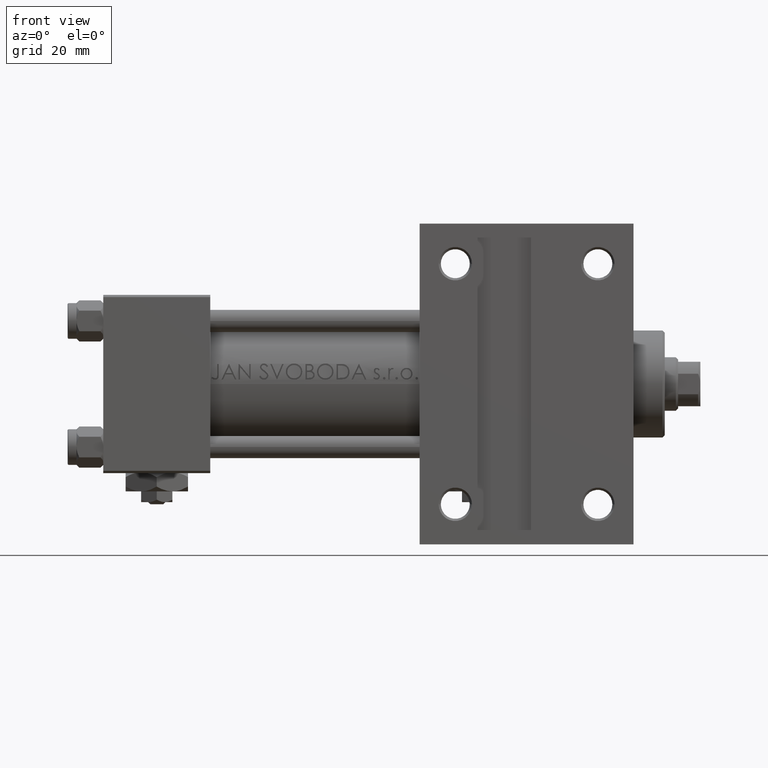
[diagram: clean part render]
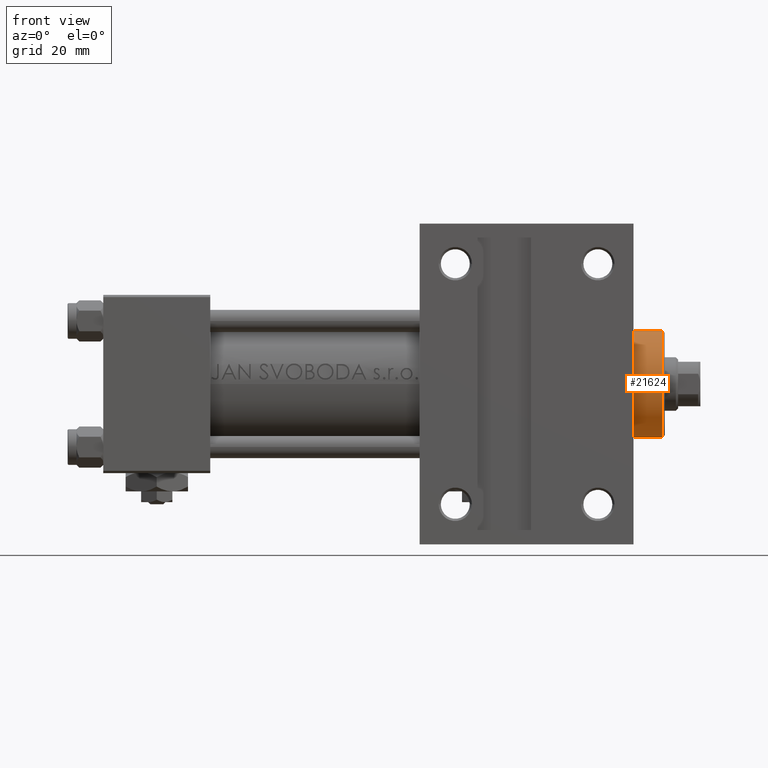
[diagram: same view with one face highlighted and labeled with its STEP entity id]
A machine part, front view. The second image highlights one B-rep face of the part: STEP entity #21624.
In plain terms, the highlighted cylindrical surface (partial cylindrical patch) has radius 12 mm, axis along (-1, 0, 0).
Its self-contained STEP definition (entity closure, byte-faithful):
#1573 = DIRECTION ( 'NONE',  ( -0.000000000000000000, -0.000000000000000000, -1.000000000000000000 ) ) ;
#3097 = VECTOR ( 'NONE', #1573, 1000.000000000000000 ) ;
#3777 = AXIS2_PLACEMENT_3D ( 'NONE', #18882, #22411, #45953 ) ;
#11080 = DIRECTION ( 'NONE',  ( 0.000000000000000000, 0.000000000000000000, 1.000000000000000000 ) ) ;
#11565 = CARTESIAN_POINT ( 'NONE',  ( 0.000000000000000000, 0.000000000000000000, 28.69999999999999929 ) ) ;
#12719 = CYLINDRICAL_SURFACE ( 'NONE', #41778, 12.00000000000000178 ) ;
#14086 = AXIS2_PLACEMENT_3D ( 'NONE', #11565, #11080, #37377 ) ;
#14416 = DIRECTION ( 'NONE',  ( -0.000000000000000000, -0.000000000000000000, -1.000000000000000000 ) ) ;
#15435 = ORIENTED_EDGE ( 'NONE', *, *, #26641, .F. ) ;
#17748 = CARTESIAN_POINT ( 'NONE',  ( -12.00000000000000178, 0.000000000000000000, 28.69999999999999929 ) ) ;
#18882 = CARTESIAN_POINT ( 'NONE',  ( 0.000000000000000000, 0.000000000000000000, 35.19999999999999574 ) ) ;
#19447 = VECTOR ( 'NONE', #14416, 1000.000000000000000 ) ;
#21159 = VERTEX_POINT ( 'NONE', #36857 ) ;
#21303 = CIRCLE ( 'NONE', #14086, 12.00000000000000178 ) ;
#21624 = ADVANCED_FACE ( 'NONE', ( #27529 ), #12719, .T. ) ;
#22188 = LINE ( 'NONE', #48754, #19447 ) ;
#22411 = DIRECTION ( 'NONE',  ( 0.000000000000000000, 0.000000000000000000, -1.000000000000000000 ) ) ;
#22840 = VERTEX_POINT ( 'NONE', #40856 ) ;
#23770 = DIRECTION ( 'NONE',  ( -1.000000000000000000, 0.000000000000000000, 0.000000000000000000 ) ) ;
#24933 = ORIENTED_EDGE ( 'NONE', *, *, #33833, .T. ) ;
#25172 = LINE ( 'NONE', #43706, #3097 ) ;
#25811 = VERTEX_POINT ( 'NONE', #43194 ) ;
#26641 = EDGE_CURVE ( 'NONE', #25811, #37907, #22188, .T. ) ;
#27529 = FACE_OUTER_BOUND ( 'NONE', #28562, .T. ) ;
#28562 = EDGE_LOOP ( 'NONE', ( #40495, #32224, #24933, #15435 ) ) ;
#32224 = ORIENTED_EDGE ( 'NONE', *, *, #46400, .T. ) ;
#33833 = EDGE_CURVE ( 'NONE', #21159, #37907, #21303, .T. ) ;
#36857 = CARTESIAN_POINT ( 'NONE',  ( 12.00000000000000178, 1.469576158976824144E-15, 28.69999999999999929 ) ) ;
#37377 = DIRECTION ( 'NONE',  ( 1.000000000000000000, 0.000000000000000000, 0.000000000000000000 ) ) ;
#37907 = VERTEX_POINT ( 'NONE', #17748 ) ;
#40495 = ORIENTED_EDGE ( 'NONE', *, *, #43833, .T. ) ;
#40856 = CARTESIAN_POINT ( 'NONE',  ( 12.00000000000000178, 1.469576158976824144E-15, 35.19999999999999574 ) ) ;
#41778 = AXIS2_PLACEMENT_3D ( 'NONE', #46818, #47295, #23770 ) ;
#43194 = CARTESIAN_POINT ( 'NONE',  ( -12.00000000000000178, 0.000000000000000000, 35.19999999999999574 ) ) ;
#43706 = CARTESIAN_POINT ( 'NONE',  ( 12.00000000000000178, 1.469576158976824144E-15, 35.70000000000000284 ) ) ;
#43833 = EDGE_CURVE ( 'NONE', #25811, #22840, #46236, .T. ) ;
#45953 = DIRECTION ( 'NONE',  ( 1.000000000000000000, 0.000000000000000000, 0.000000000000000000 ) ) ;
#46236 = CIRCLE ( 'NONE', #3777, 12.00000000000000178 ) ;
#46400 = EDGE_CURVE ( 'NONE', #22840, #21159, #25172, .T. ) ;
#46818 = CARTESIAN_POINT ( 'NONE',  ( 0.000000000000000000, 0.000000000000000000, 35.70000000000000284 ) ) ;
#47295 = DIRECTION ( 'NONE',  ( -0.000000000000000000, -0.000000000000000000, -1.000000000000000000 ) ) ;
#48754 = CARTESIAN_POINT ( 'NONE',  ( -12.00000000000000178, 0.000000000000000000, 35.70000000000000284 ) ) ;